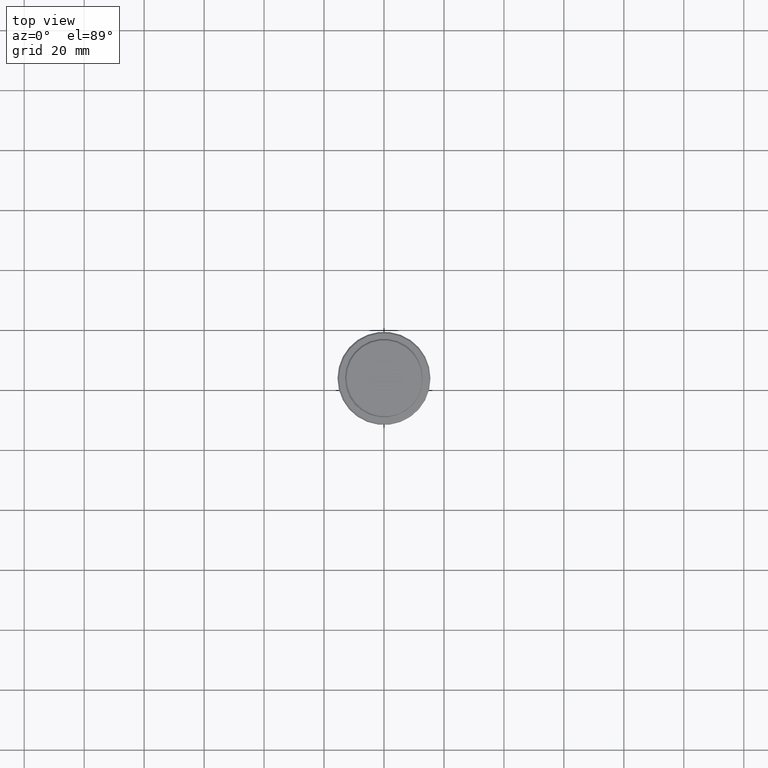
[diagram: clean part render]
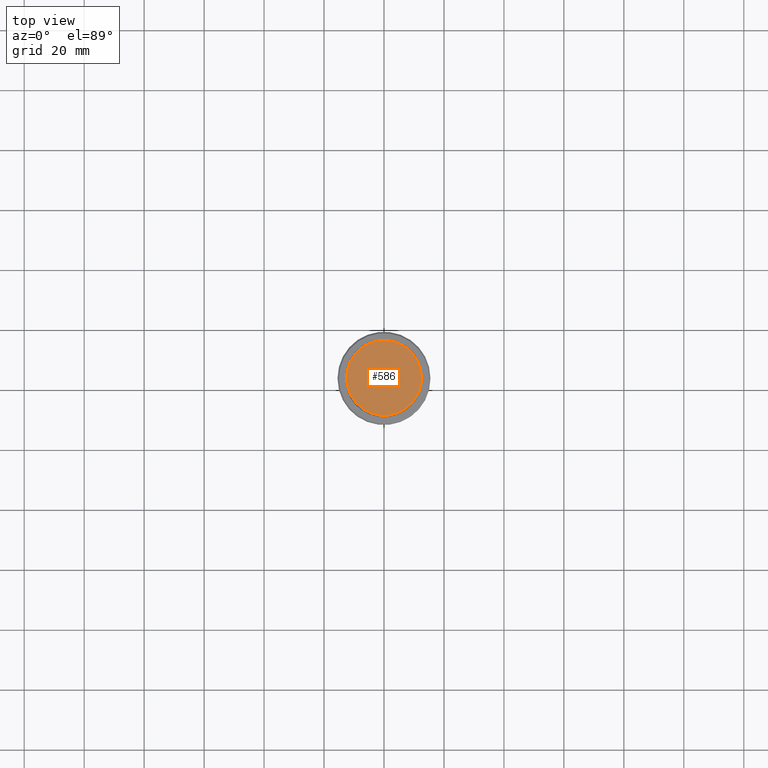
[diagram: same view with one face highlighted and labeled with its STEP entity id]
A machine part, top view. The second image highlights one B-rep face of the part: STEP entity #586.
In plain terms, the highlighted planar face has unit normal (0, -0, 1).
Its self-contained STEP definition (entity closure, byte-faithful):
#79 = CIRCLE ( 'NONE', #397, 12.50000000000006750 ) ;
#142 = VERTEX_POINT ( 'NONE', #617 ) ;
#180 = CARTESIAN_POINT ( 'NONE',  ( 0.000000000000000000, 0.000000000000000000, 0.000000000000000000 ) ) ;
#266 = DIRECTION ( 'NONE',  ( -0.000000000000000000, -0.000000000000000000, 1.000000000000000000 ) ) ;
#271 = DIRECTION ( 'NONE',  ( -0.000000000000000000, -0.000000000000000000, 1.000000000000000000 ) ) ;
#279 = EDGE_LOOP ( 'NONE', ( #296, #1140 ) ) ;
#296 = ORIENTED_EDGE ( 'NONE', *, *, #356, .T. ) ;
#299 = DIRECTION ( 'NONE',  ( 0.000000000000000000, -0.000000000000000000, 1.000000000000000000 ) ) ;
#356 = EDGE_CURVE ( 'NONE', #142, #929, #991, .T. ) ;
#397 = AXIS2_PLACEMENT_3D ( 'NONE', #801, #266, #590 ) ;
#558 = AXIS2_PLACEMENT_3D ( 'NONE', #943, #271, #1387 ) ;
#586 = ADVANCED_FACE ( 'NONE', ( #776 ), #1219, .T. ) ;
#590 = DIRECTION ( 'NONE',  ( 1.000000000000000000, 0.000000000000000000, 0.000000000000000000 ) ) ;
#617 = CARTESIAN_POINT ( 'NONE',  ( -12.50000000000006750, 0.000000000000000000, 0.000000000000000000 ) ) ;
#669 = CARTESIAN_POINT ( 'NONE',  ( 12.50000000000006750, 1.561424668912879450E-15, 0.000000000000000000 ) ) ;
#754 = EDGE_CURVE ( 'NONE', #929, #142, #79, .T. ) ;
#776 = FACE_OUTER_BOUND ( 'NONE', #279, .T. ) ;
#801 = CARTESIAN_POINT ( 'NONE',  ( 0.000000000000000000, 0.000000000000000000, 0.000000000000000000 ) ) ;
#872 = AXIS2_PLACEMENT_3D ( 'NONE', #180, #299, #1240 ) ;
#929 = VERTEX_POINT ( 'NONE', #669 ) ;
#943 = CARTESIAN_POINT ( 'NONE',  ( 0.000000000000000000, 0.000000000000000000, 0.000000000000000000 ) ) ;
#991 = CIRCLE ( 'NONE', #558, 12.50000000000006750 ) ;
#1140 = ORIENTED_EDGE ( 'NONE', *, *, #754, .T. ) ;
#1219 = PLANE ( 'NONE',  #872 ) ;
#1240 = DIRECTION ( 'NONE',  ( 1.000000000000000000, 0.000000000000000000, 0.000000000000000000 ) ) ;
#1387 = DIRECTION ( 'NONE',  ( 1.000000000000000000, 0.000000000000000000, 0.000000000000000000 ) ) ;